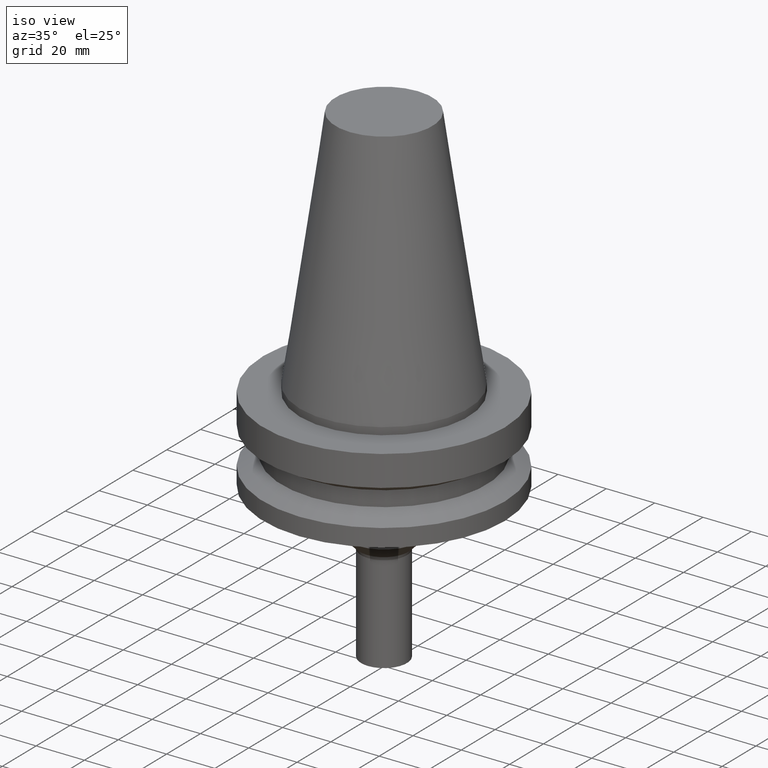
[diagram: clean part render]
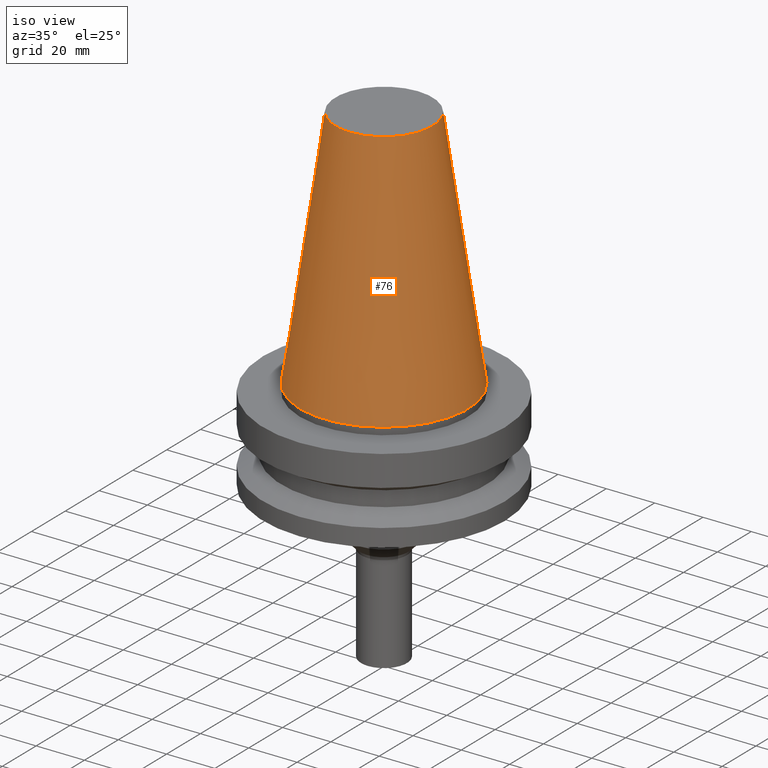
[diagram: same view with one face highlighted and labeled with its STEP entity id]
A machine part, iso view. The second image highlights one B-rep face of the part: STEP entity #76.
In plain terms, the highlighted conical surface has half-angle 8.297 deg.
Its self-contained STEP definition (entity closure, byte-faithful):
#76=ADVANCED_FACE('',(#94,#95),#96,.T.);
#94=FACE_BOUND('',#140,.T.);
#95=FACE_BOUND('',#141,.T.);
#96=CONICAL_SURFACE('',#142,27.5020833325942,0.144812498253157);
#140=EDGE_LOOP('',(#188));
#141=EDGE_LOOP('',(#189));
#142=AXIS2_PLACEMENT_3D('',#190,#191,#192);
#188=ORIENTED_EDGE('',*,*,#263,.F.);
#189=ORIENTED_EDGE('',*,*,#262,.T.);
#190=CARTESIAN_POINT('',(-3.11672610383001E-015,-6.23345220766003E-015,50.9));
#191=DIRECTION('',(6.12323399573677E-017,1.22464679914678E-016,-1.0));
#192=DIRECTION('',(-1.232595164408E-032,1.0,1.22464679914678E-016));
#262=EDGE_CURVE('',#277,#277,#278,.T.);
#263=EDGE_CURVE('',#279,#279,#280,.T.);
#277=VERTEX_POINT('',#307);
#278=CIRCLE('',#308,20.0791666651885);
#279=VERTEX_POINT('',#309);
#280=CIRCLE('',#310,34.925);
#307=CARTESIAN_POINT('',(-6.23345220766003E-015,20.0791666651884,101.8));
#308=AXIS2_PLACEMENT_3D('',#337,#338,#339);
#309=CARTESIAN_POINT('',(-4.30483861169435E-031,34.925,4.27707894602213E-015));
#310=AXIS2_PLACEMENT_3D('',#340,#341,#342);
#337=CARTESIAN_POINT('',(-6.23345220766003E-015,-1.24669044153201E-014,101.8));
#338=DIRECTION('',(6.12323399573677E-017,1.22464679914793E-016,-1.0));
#339=DIRECTION('',(-1.23259516440811E-032,1.0,1.22464679914793E-016));
#340=CARTESIAN_POINT('',(0.0,0.0,0.0));
#341=DIRECTION('',(6.12323399573677E-017,1.22464679914705E-016,-1.0));
#342=DIRECTION('',(-1.23259516440742E-032,1.0,1.22464679914705E-016));